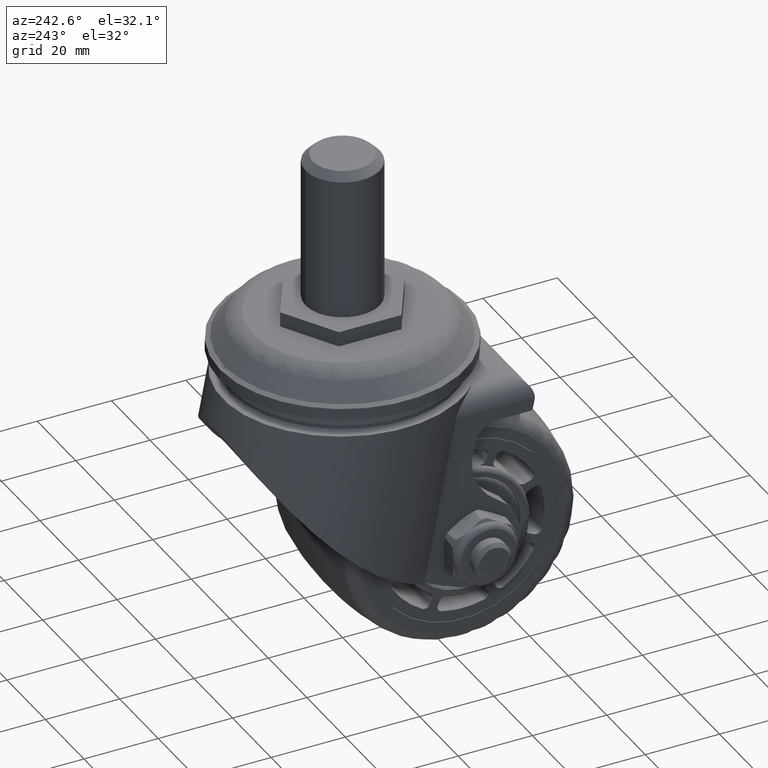
[diagram: clean part render]
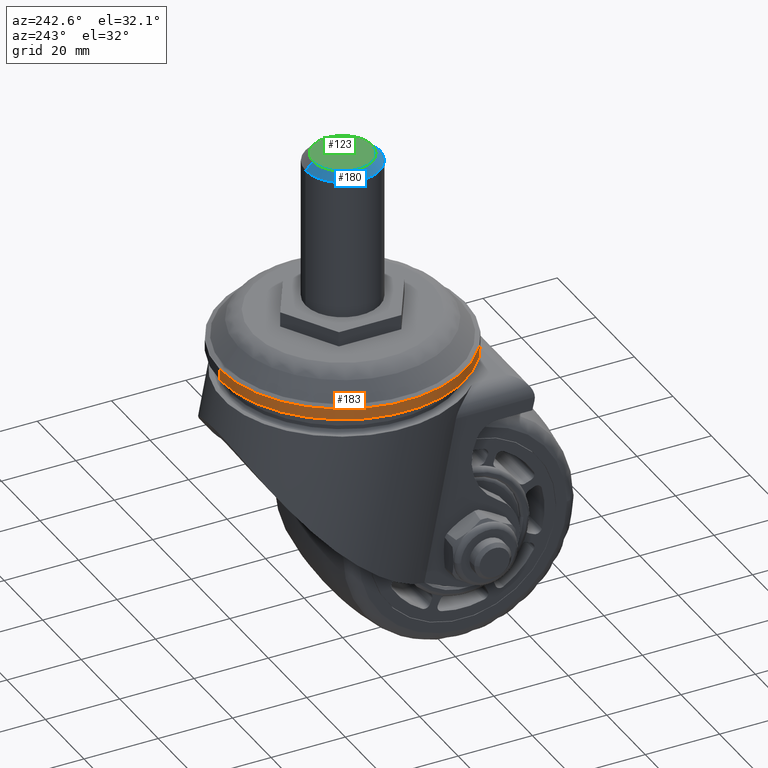
[diagram: same view with three faces highlighted in distinct colors, each labeled with its STEP entity id]
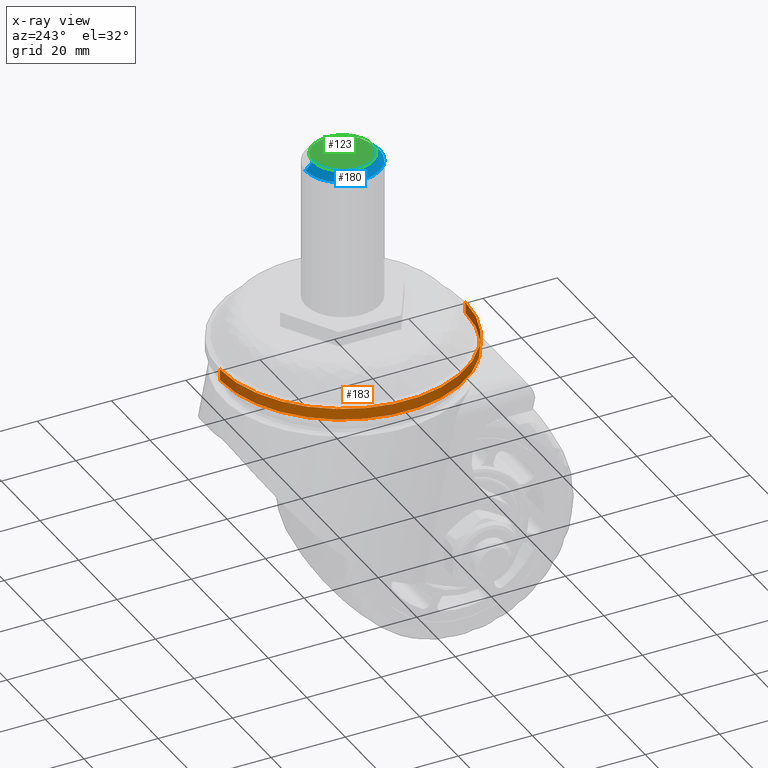
[diagram: x-ray of the same camera — body ghosted, the three highlighted faces saturated]
A machine part, auxiliary view with three faces highlighted in distinct colors.
The next image is the same camera in x-ray (body ghosted, the three faces saturated) — at least one of them is partly hidden behind the body in this view.
Their STEP definitions:

[orange] entity #183 — the highlighted cylindrical surface (partial cylindrical patch) has radius 33.0001 mm, axis along (0, 0, 1).
#183=ADVANCED_FACE('',(#1042),#1041,.T.);
#1041=CYLINDRICAL_SURFACE('',#2946,3.30001073170E+01);
#1042=FACE_OUTER_BOUND('',#2947,.T.);
#2943=CARTESIAN_POINT('',(0.00000000000E+00,0.00000000000E+00,2.24402254403E-04));
#2944=DIRECTION('',(-0.00000000000E+00,1.00000000000E+00,0.00000000000E+00));
#2945=DIRECTION('',(-0.00000000000E+00,-0.00000000000E+00,1.00000000000E+00));
#2946=AXIS2_PLACEMENT_3D('',#2943,#2944,#2945);
#2947=EDGE_LOOP('',(#4598,#4599,#4600,#4601));
#4598=ORIENTED_EDGE('',*,*,#5410,.F.);
#4599=ORIENTED_EDGE('',*,*,#5513,.T.);
#4600=ORIENTED_EDGE('',*,*,#5405,.T.);
#4601=ORIENTED_EDGE('',*,*,#5514,.F.);
#5405=EDGE_CURVE('',#6428,#6429,#6430,.T.);
#5410=EDGE_CURVE('',#6457,#6456,#6464,.T.);
#5513=EDGE_CURVE('',#6457,#6428,#7135,.T.);
#5514=EDGE_CURVE('',#6456,#6429,#7141,.T.);
#6428=VERTEX_POINT('',#10006);
#6429=VERTEX_POINT('',#10007);
#6430=CIRCLE('',#10011,3.30001061950E+01);
#6456=VERTEX_POINT('',#10026);
#6457=VERTEX_POINT('',#10027);
#6464=CIRCLE('',#10035,3.30001084390E+01);
#7135=(BOUNDED_CURVE() B_SPLINE_CURVE(1,(#10625,#10626),.UNSPECIFIED.,.F.,.F.) B_SPLINE_CURVE_WITH_KNOTS((2,2),(8.33333233997E-02,9.16666663280E-01),.UNSPECIFIED.) CURVE() GEOMETRIC_REPRESENTATION_ITEM() RATIONAL_B_SPLINE_CURVE((1.00000000000E+00,1.00000000000E+00)) REPRESENTATION_ITEM('') );
#7141=(BOUNDED_CURVE() B_SPLINE_CURVE(1,(#10627,#10628),.UNSPECIFIED.,.F.,.F.) B_SPLINE_CURVE_WITH_KNOTS((2,2),(8.33333333333E-02,9.16666666667E-01),.UNSPECIFIED.) CURVE() GEOMETRIC_REPRESENTATION_ITEM() RATIONAL_B_SPLINE_CURVE((7.50000000000E-01,7.50000000000E-01)) REPRESENTATION_ITEM('') );
#10006=CARTESIAN_POINT('',(2.36847578587E-15,-7.48826561587E+00,3.30003305973E+01));
#10007=CARTESIAN_POINT('',(0.00000000000E+00,-7.48826561587E+00,-3.29998817928E+01));
#10008=CARTESIAN_POINT('',(0.00000000000E+00,-7.48826561587E+00,2.24402254403E-04));
#10009=DIRECTION('',(0.00000000000E+00,-1.00000000000E+00,-0.00000000000E+00));
#10010=DIRECTION('',(-1.22460635382E-16,0.00000000000E+00,-1.00000000000E+00));
#10011=AXIS2_PLACEMENT_3D('',#10008,#10009,#10010);
#10026=CARTESIAN_POINT('',(0.00000000000E+00,-1.04882293159E+01,-3.29998840367E+01));
#10027=CARTESIAN_POINT('',(2.36847578587E-15,-1.04882293159E+01,3.30003328413E+01));
#10032=CARTESIAN_POINT('',(0.00000000000E+00,-1.04882293159E+01,2.24402254403E-04));
#10033=DIRECTION('',(0.00000000000E+00,-1.00000000000E+00,-0.00000000000E+00));
#10034=DIRECTION('',(-1.22460635382E-16,0.00000000000E+00,-1.00000000000E+00));
#10035=AXIS2_PLACEMENT_3D('',#10032,#10033,#10034);
#10625=CARTESIAN_POINT('',(0.00000000000E+00,-1.04882293517E+01,3.30003317193E+01));
#10626=CARTESIAN_POINT('',(0.00000000000E+00,-7.48826562807E+00,3.30003317193E+01));
#10627=CARTESIAN_POINT('',(-2.36847578587E-15,-1.04882293159E+01,-3.29998829148E+01));
#10628=CARTESIAN_POINT('',(-2.36847578587E-15,-7.48826561587E+00,-3.29998829148E+01));

[blue] entity #180 — the highlighted face is a freeform B-spline surface patch.
#180=ADVANCED_FACE('',(#1012),#1011,.T.);
#1011=( BOUNDED_SURFACE() B_SPLINE_SURFACE( 2,1,((#2916,#2917),(#2918,#2919),(#2920,#2921),(#2922,#2923),(#2924,#2925)), .UNSPECIFIED.,.F.,.F.,.F.) B_SPLINE_SURFACE_WITH_KNOTS((3,2,3),(2,2),(0.00000000000E+00,5.00000000000E-01,1.00000000000E+00),(0.00000000000E+00,1.00000000000E+00), .UNSPECIFIED. ) GEOMETRIC_REPRESENTATION_ITEM() RATIONAL_B_SPLINE_SURFACE(((1.00000000000E+00,1.00000000000E+00),(7.07106781187E-01,7.07106781187E-01),(1.00000000000E+00,1.00000000000E+00),(7.07106781187E-01,7.07106781187E-01),(1.00000000000E+00,1.00000000000E+00))) REPRESENTATION_ITEM('') SURFACE() );
#1012=FACE_OUTER_BOUND('',#2926,.T.);
#2916=CARTESIAN_POINT('',(0.00000000000E+00,5.20000607019E+01,2.24402254403E-04));
#2917=CARTESIAN_POINT('',(-3.46384922746E-15,3.78578441543E+01,1.41424621065E+01));
#2918=CARTESIAN_POINT('',(0.00000000000E+00,5.20000607019E+01,2.24402254403E-04));
#2919=CARTESIAN_POINT('',(-1.41422377042E+01,3.78578441543E+01,1.41424621065E+01));
#2920=CARTESIAN_POINT('',(0.00000000000E+00,5.20000607019E+01,2.24402254403E-04));
#2921=CARTESIAN_POINT('',(-1.41422377042E+01,3.78578441543E+01,2.24402254401E-04));
#2922=CARTESIAN_POINT('',(0.00000000000E+00,5.20000607019E+01,2.24402254403E-04));
#2923=CARTESIAN_POINT('',(-1.41422377042E+01,3.78578441543E+01,-1.41420133020E+01));
#2924=CARTESIAN_POINT('',(0.00000000000E+00,5.20000607019E+01,2.24402254403E-04));
#2925=CARTESIAN_POINT('',(1.73192461373E-15,3.78578441543E+01,-1.41420133020E+01));
#2926=EDGE_LOOP('',(#4586,#4587,#4588,#4589));
#4586=ORIENTED_EDGE('',*,*,#5510,.F.);
#4587=ORIENTED_EDGE('',*,*,#5511,.F.);
#4588=ORIENTED_EDGE('',*,*,#5392,.T.);
#4589=ORIENTED_EDGE('',*,*,#5512,.T.);
#5392=EDGE_CURVE('',#6338,#6339,#6340,.T.);
#5510=EDGE_CURVE('',#7104,#7097,#7117,.T.);
#5511=EDGE_CURVE('',#6338,#7104,#7123,.T.);
#5512=EDGE_CURVE('',#6339,#7097,#7129,.T.);
#6338=VERTEX_POINT('',#9951);
#6339=VERTEX_POINT('',#9952);
#6340=CIRCLE('',#9956,8.00006668583E+00);
#7097=VERTEX_POINT('',#10607);
#7104=VERTEX_POINT('',#10610);
#7117=CIRCLE('',#10620,1.00000721818E+01);
#7123=(BOUNDED_CURVE() B_SPLINE_CURVE(1,(#10621,#10622),.UNSPECIFIED.,.F.,.F.) B_SPLINE_CURVE_WITH_KNOTS((2,2),(5.65686057508E-01,7.07106780706E-01),.UNSPECIFIED.) CURVE() GEOMETRIC_REPRESENTATION_ITEM() RATIONAL_B_SPLINE_CURVE((1.00000000000E+00,1.00000000000E+00)) REPRESENTATION_ITEM('') );
#7129=(BOUNDED_CURVE() B_SPLINE_CURVE(1,(#10623,#10624),.UNSPECIFIED.,.F.,.F.) B_SPLINE_CURVE_WITH_KNOTS((2,2),(5.65686056549E-01,7.07106780467E-01),.UNSPECIFIED.) CURVE() GEOMETRIC_REPRESENTATION_ITEM() RATIONAL_B_SPLINE_CURVE((7.50000000000E-01,7.50000000000E-01)) REPRESENTATION_ITEM('') );
#9951=CARTESIAN_POINT('',(8.88178419700E-16,4.40000059841E+01,8.00029108809E+00));
#9952=CARTESIAN_POINT('',(0.00000000000E+00,4.40000059841E+01,-7.99984228358E+00));
#9953=CARTESIAN_POINT('',(0.00000000000E+00,4.40000059841E+01,2.24402254403E-04));
#9954=DIRECTION('',(0.00000000000E+00,-1.00000000000E+00,-0.00000000000E+00));
#9955=DIRECTION('',(-1.22460635382E-16,0.00000000000E+00,-1.00000000000E+00));
#9956=AXIS2_PLACEMENT_3D('',#9953,#9954,#9955);
#10607=CARTESIAN_POINT('',(0.00000000000E+00,4.20000034801E+01,-9.99984777956E+00));
#10610=CARTESIAN_POINT('',(5.92118946467E-16,4.20000034801E+01,1.00002965841E+01));
#10617=CARTESIAN_POINT('',(0.00000000000E+00,4.20000034801E+01,2.24402254403E-04));
#10618=DIRECTION('',(0.00000000000E+00,-1.00000000000E+00,-0.00000000000E+00));
#10619=DIRECTION('',(-1.22460635382E-16,0.00000000000E+00,-1.00000000000E+00));
#10620=AXIS2_PLACEMENT_3D('',#10617,#10618,#10619);
#10621=CARTESIAN_POINT('',(-1.95938650022E-15,4.40000059787E+01,8.00029109350E+00));
#10622=CARTESIAN_POINT('',(-2.44923038484E-15,4.20000034869E+01,1.00002965773E+01));
#10623=CARTESIAN_POINT('',(2.00972059101E-15,4.40000059922E+01,-7.99984227544E+00));
#10624=CARTESIAN_POINT('',(2.51214793134E-15,4.20000034903E+01,-9.99984776939E+00));

[green] entity #123 — the highlighted planar face has unit normal (0, 0, -1).
#123=ADVANCED_FACE('',(#437),#436,.F.);
#436=PLANE('',#2517);
#437=FACE_OUTER_BOUND('',#2518,.T.);
#2514=CARTESIAN_POINT('',(-1.66278263566E+01,4.40000029921E+01,1.84003777797E+01));
#2515=DIRECTION('',(0.00000000000E+00,-1.00000000000E+00,-0.00000000000E+00));
#2516=DIRECTION('',(0.00000000000E+00,0.00000000000E+00,-1.00000000000E+00));
#2517=AXIS2_PLACEMENT_3D('',#2514,#2515,#2516);
#2518=EDGE_LOOP('',(#4327,#4328));
#4327=ORIENTED_EDGE('',*,*,#5392,.F.);
#4328=ORIENTED_EDGE('',*,*,#5393,.F.);
#5392=EDGE_CURVE('',#6338,#6339,#6340,.T.);
#5393=EDGE_CURVE('',#6339,#6338,#6346,.T.);
#6338=VERTEX_POINT('',#9951);
#6339=VERTEX_POINT('',#9952);
#6340=CIRCLE('',#9956,8.00006668583E+00);
#6346=CIRCLE('',#9960,8.00006668583E+00);
#9951=CARTESIAN_POINT('',(8.88178419700E-16,4.40000059841E+01,8.00029108809E+00));
#9952=CARTESIAN_POINT('',(0.00000000000E+00,4.40000059841E+01,-7.99984228358E+00));
#9953=CARTESIAN_POINT('',(0.00000000000E+00,4.40000059841E+01,2.24402254403E-04));
#9954=DIRECTION('',(0.00000000000E+00,-1.00000000000E+00,-0.00000000000E+00));
#9955=DIRECTION('',(-1.22460635382E-16,0.00000000000E+00,-1.00000000000E+00));
#9956=AXIS2_PLACEMENT_3D('',#9953,#9954,#9955);
#9957=CARTESIAN_POINT('',(0.00000000000E+00,4.40000059841E+01,2.24402254403E-04));
#9958=DIRECTION('',(0.00000000000E+00,-1.00000000000E+00,-0.00000000000E+00));
#9959=DIRECTION('',(-1.22460635382E-16,0.00000000000E+00,-1.00000000000E+00));
#9960=AXIS2_PLACEMENT_3D('',#9957,#9958,#9959);